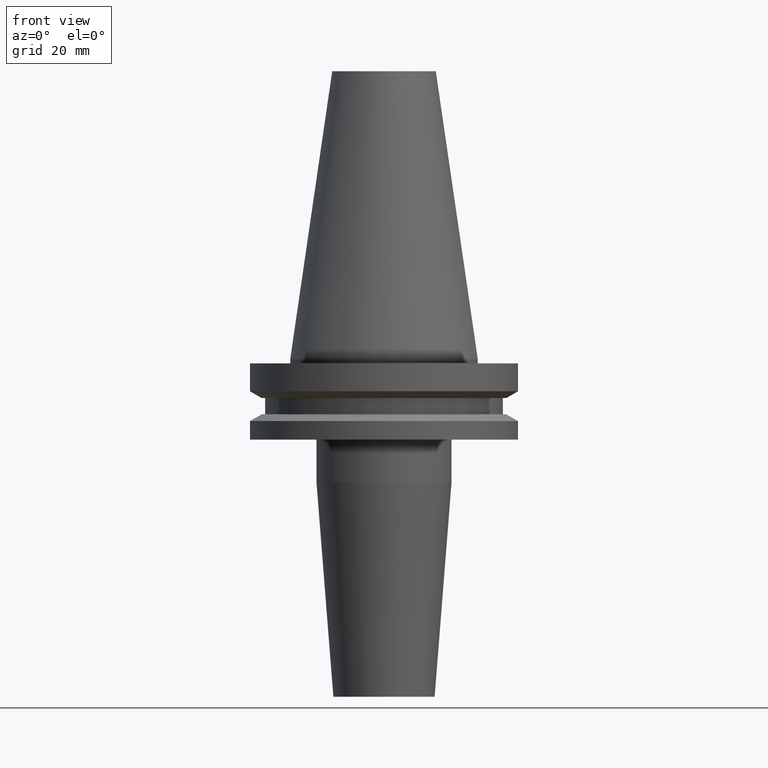
[diagram: clean part render]
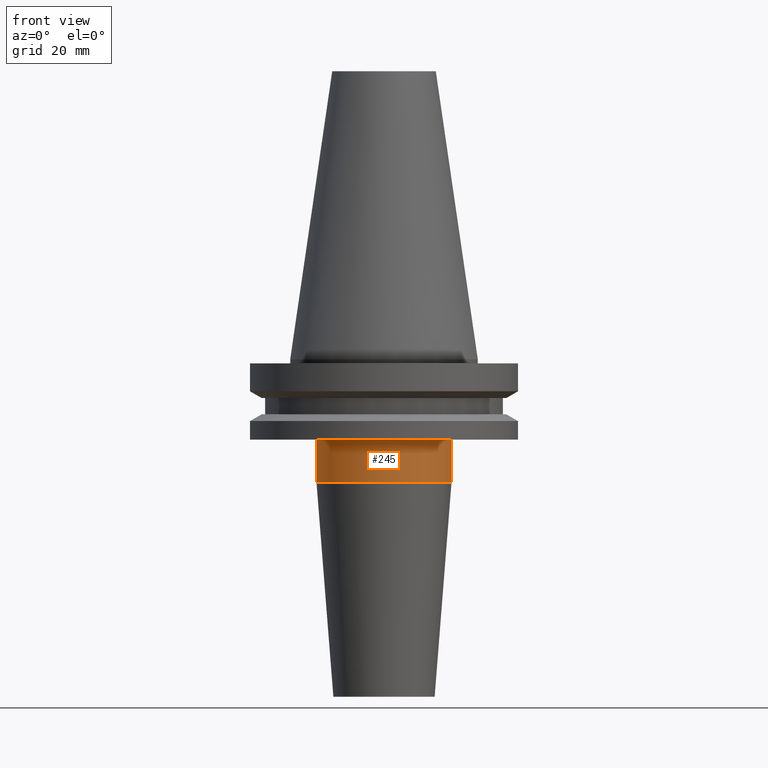
[diagram: same view with one face highlighted and labeled with its STEP entity id]
A machine part, front view. The second image highlights one B-rep face of the part: STEP entity #245.
In plain terms, the highlighted cylindrical surface (partial cylindrical patch) has radius 16 mm, axis along (-0, -0, 1).
Its self-contained STEP definition (entity closure, byte-faithful):
#35 = ORIENTED_EDGE ( 'NONE', *, *, #526, .T. ) ;
#39 = VERTEX_POINT ( 'NONE', #730 ) ;
#50 = EDGE_CURVE ( 'NONE', #333, #342, #238, .T. ) ;
#87 = CARTESIAN_POINT ( 'NONE',  ( 15.99999999999999289, 0.000000000000000000, -29.17518105529640948 ) ) ;
#110 = CARTESIAN_POINT ( 'NONE',  ( 0.000000000000000000, 0.000000000000000000, 0.000000000000000000 ) ) ;
#115 = ORIENTED_EDGE ( 'NONE', *, *, #382, .T. ) ;
#121 = VERTEX_POINT ( 'NONE', #87 ) ;
#135 = CARTESIAN_POINT ( 'NONE',  ( -15.99999999999999289, 1.959434878635764343E-15, 0.000000000000000000 ) ) ;
#147 = DIRECTION ( 'NONE',  ( -0.000000000000000000, -0.000000000000000000, 1.000000000000000000 ) ) ;
#148 = CIRCLE ( 'NONE', #415, 15.99999999999999289 ) ;
#152 = LINE ( 'NONE', #135, #441 ) ;
#173 = DIRECTION ( 'NONE',  ( 1.000000000000000000, 0.000000000000000000, 0.000000000000000000 ) ) ;
#182 = FACE_OUTER_BOUND ( 'NONE', #691, .T. ) ;
#190 = DIRECTION ( 'NONE',  ( -0.000000000000000000, -0.000000000000000000, 1.000000000000000000 ) ) ;
#238 = CIRCLE ( 'NONE', #668, 15.99999999999999289 ) ;
#245 = ADVANCED_FACE ( 'NONE', ( #182 ), #646, .T. ) ;
#266 = DIRECTION ( 'NONE',  ( -0.000000000000000000, -0.000000000000000000, 1.000000000000000000 ) ) ;
#303 = ORIENTED_EDGE ( 'NONE', *, *, #50, .F. ) ;
#333 = VERTEX_POINT ( 'NONE', #592 ) ;
#334 = CARTESIAN_POINT ( 'NONE',  ( 0.000000000000000000, 0.000000000000000000, -29.17518105529640948 ) ) ;
#342 = VERTEX_POINT ( 'NONE', #708 ) ;
#382 = EDGE_CURVE ( 'NONE', #121, #342, #615, .T. ) ;
#415 = AXIS2_PLACEMENT_3D ( 'NONE', #334, #521, #173 ) ;
#424 = CARTESIAN_POINT ( 'NONE',  ( 0.000000000000000000, 0.000000000000000000, -19.04999999999999716 ) ) ;
#441 = VECTOR ( 'NONE', #623, 1000.000000000000000 ) ;
#454 = EDGE_CURVE ( 'NONE', #39, #333, #152, .T. ) ;
#468 = AXIS2_PLACEMENT_3D ( 'NONE', #110, #190, #658 ) ;
#502 = ORIENTED_EDGE ( 'NONE', *, *, #454, .F. ) ;
#521 = DIRECTION ( 'NONE',  ( -0.000000000000000000, -0.000000000000000000, 1.000000000000000000 ) ) ;
#526 = EDGE_CURVE ( 'NONE', #39, #121, #148, .T. ) ;
#592 = CARTESIAN_POINT ( 'NONE',  ( -15.99999999999999289, 1.959434878635764343E-15, -19.04999999999999716 ) ) ;
#615 = LINE ( 'NONE', #675, #627 ) ;
#623 = DIRECTION ( 'NONE',  ( -0.000000000000000000, -0.000000000000000000, 1.000000000000000000 ) ) ;
#627 = VECTOR ( 'NONE', #147, 1000.000000000000000 ) ;
#646 = CYLINDRICAL_SURFACE ( 'NONE', #468, 15.99999999999999289 ) ;
#658 = DIRECTION ( 'NONE',  ( 1.000000000000000000, 0.000000000000000000, 0.000000000000000000 ) ) ;
#668 = AXIS2_PLACEMENT_3D ( 'NONE', #424, #266, #726 ) ;
#675 = CARTESIAN_POINT ( 'NONE',  ( 15.99999999999999289, 0.000000000000000000, 0.000000000000000000 ) ) ;
#691 = EDGE_LOOP ( 'NONE', ( #502, #35, #115, #303 ) ) ;
#708 = CARTESIAN_POINT ( 'NONE',  ( 15.99999999999999289, 0.000000000000000000, -19.04999999999999716 ) ) ;
#726 = DIRECTION ( 'NONE',  ( 1.000000000000000000, 0.000000000000000000, 0.000000000000000000 ) ) ;
#730 = CARTESIAN_POINT ( 'NONE',  ( -15.99999999999999289, 1.959434878635764343E-15, -29.17518105529640948 ) ) ;